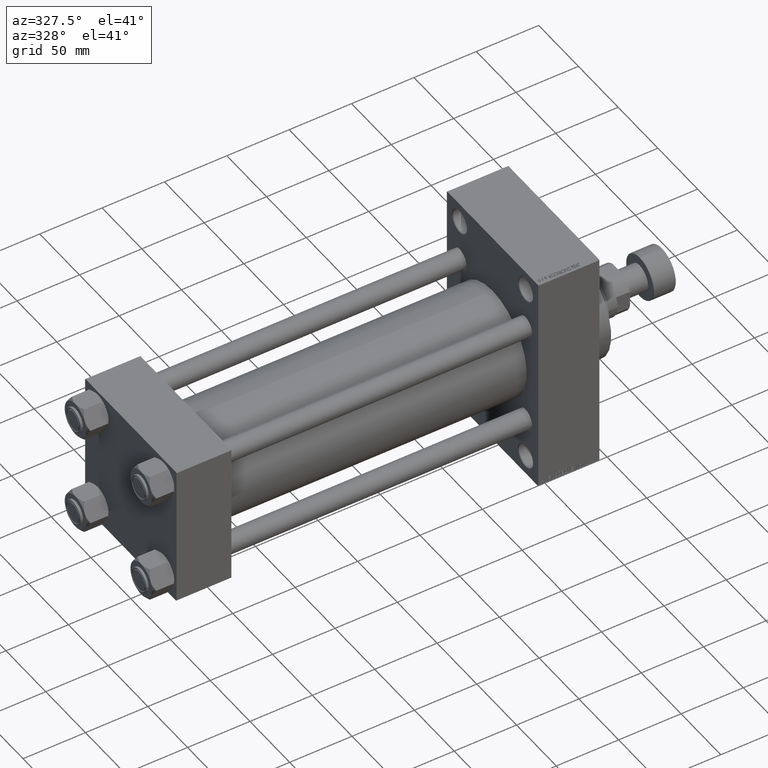
[diagram: clean part render]
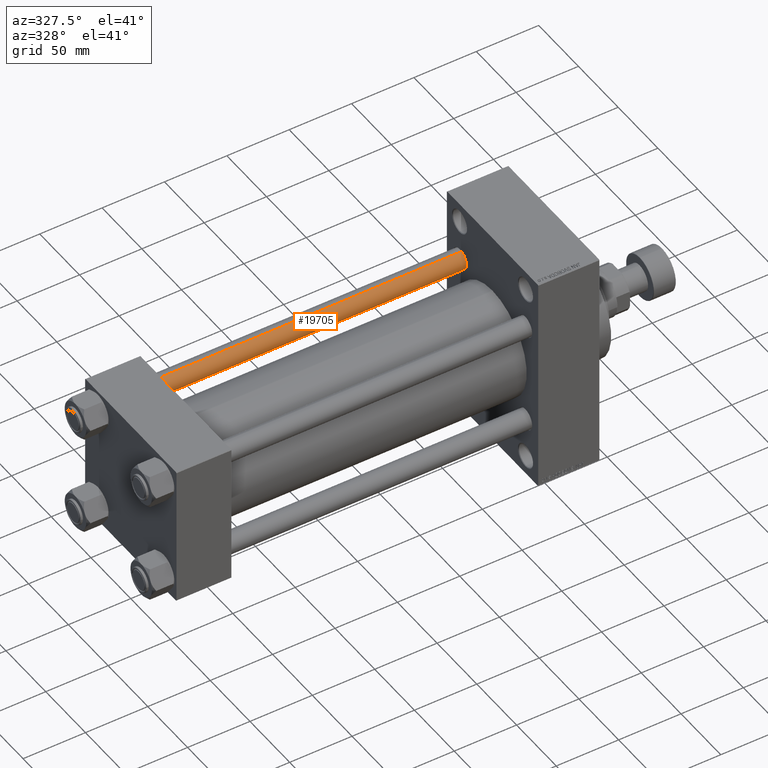
[diagram: same view with one face highlighted and labeled with its STEP entity id]
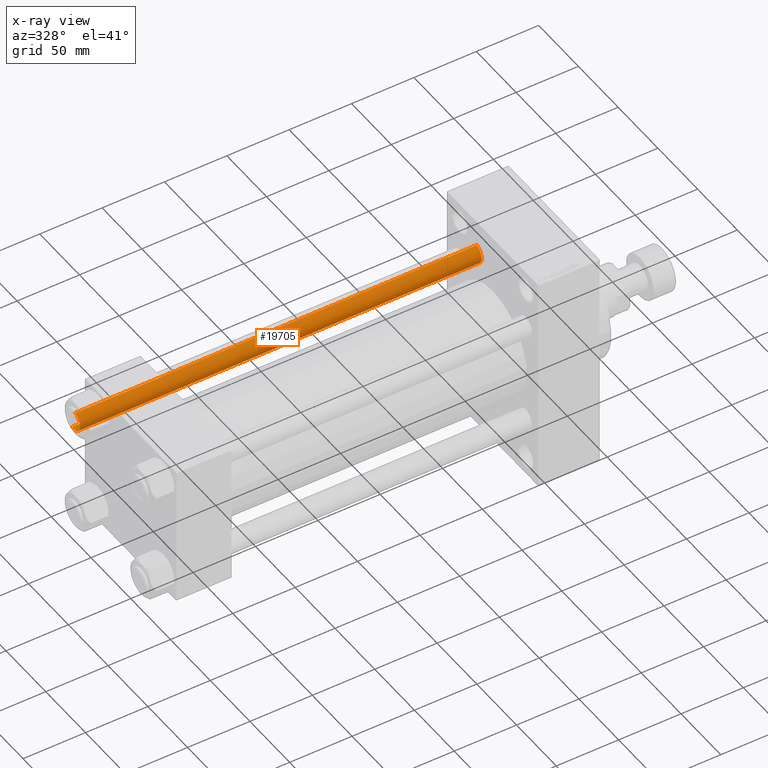
[diagram: x-ray of the same camera — body ghosted, the highlighted face saturated]
A machine part, auxiliary view. The second image highlights one B-rep face of the part: STEP entity #19705.
The next image is the same camera in x-ray: the body ghosted, the highlighted face saturated — about 0% of this face is hidden behind the body in this view.
In plain terms, the highlighted cylindrical surface (edge-blend (fillet) strip) has radius 8 mm, axis along (-1, -0, 0).
Its self-contained STEP definition (entity closure, byte-faithful):
#951 = CARTESIAN_POINT ( 'NONE',  ( -8.000000000000000000, 0.000000000000000000, 0.5000000000000004441 ) ) ;
#1898 = AXIS2_PLACEMENT_3D ( 'NONE', #40627, #22056, #33799 ) ;
#4510 = VECTOR ( 'NONE', #17294, 1000.000000000000000 ) ;
#4548 = LINE ( 'NONE', #16794, #14487 ) ;
#7925 = ORIENTED_EDGE ( 'NONE', *, *, #28003, .F. ) ;
#9476 = AXIS2_PLACEMENT_3D ( 'NONE', #21277, #21030, #32297 ) ;
#9477 = LINE ( 'NONE', #43926, #4510 ) ;
#12594 = CIRCLE ( 'NONE', #9476, 8.000000000000000000 ) ;
#13609 = VERTEX_POINT ( 'NONE', #25053 ) ;
#14167 = EDGE_CURVE ( 'NONE', #44642, #13609, #12594, .T. ) ;
#14487 = VECTOR ( 'NONE', #19474, 1000.000000000000000 ) ;
#15832 = ORIENTED_EDGE ( 'NONE', *, *, #25265, .T. ) ;
#16794 = CARTESIAN_POINT ( 'NONE',  ( 8.000000000000000000, 9.797174393178825657E-16, 323.0000000000000000 ) ) ;
#17294 = DIRECTION ( 'NONE',  ( -0.000000000000000000, -0.000000000000000000, -1.000000000000000000 ) ) ;
#19474 = DIRECTION ( 'NONE',  ( -0.000000000000000000, -0.000000000000000000, -1.000000000000000000 ) ) ;
#19566 = CARTESIAN_POINT ( 'NONE',  ( -8.000000000000000000, 0.000000000000000000, 322.5000000000000000 ) ) ;
#19705 = ADVANCED_FACE ( 'NONE', ( #31777 ), #29045, .T. ) ;
#20649 = CIRCLE ( 'NONE', #1898, 8.000000000000000000 ) ;
#20980 = DIRECTION ( 'NONE',  ( -1.000000000000000000, 0.000000000000000000, 0.000000000000000000 ) ) ;
#21030 = DIRECTION ( 'NONE',  ( -0.000000000000000000, -0.000000000000000000, 1.000000000000000000 ) ) ;
#21277 = CARTESIAN_POINT ( 'NONE',  ( 0.000000000000000000, 0.000000000000000000, 0.5000000000000004441 ) ) ;
#21295 = VERTEX_POINT ( 'NONE', #19566 ) ;
#22056 = DIRECTION ( 'NONE',  ( 0.000000000000000000, 0.000000000000000000, -1.000000000000000000 ) ) ;
#22060 = VERTEX_POINT ( 'NONE', #38771 ) ;
#23409 = EDGE_LOOP ( 'NONE', ( #7925, #15832, #42181, #25753 ) ) ;
#24177 = CARTESIAN_POINT ( 'NONE',  ( 0.000000000000000000, 0.000000000000000000, 323.0000000000000000 ) ) ;
#25053 = CARTESIAN_POINT ( 'NONE',  ( 8.000000000000000000, 9.797174393178825657E-16, 0.5000000000000004441 ) ) ;
#25265 = EDGE_CURVE ( 'NONE', #22060, #21295, #20649, .T. ) ;
#25753 = ORIENTED_EDGE ( 'NONE', *, *, #14167, .T. ) ;
#26817 = AXIS2_PLACEMENT_3D ( 'NONE', #24177, #28571, #20980 ) ;
#28003 = EDGE_CURVE ( 'NONE', #22060, #13609, #4548, .T. ) ;
#28571 = DIRECTION ( 'NONE',  ( -0.000000000000000000, -0.000000000000000000, -1.000000000000000000 ) ) ;
#29045 = CYLINDRICAL_SURFACE ( 'NONE', #26817, 8.000000000000000000 ) ;
#31777 = FACE_OUTER_BOUND ( 'NONE', #23409, .T. ) ;
#32297 = DIRECTION ( 'NONE',  ( 1.000000000000000000, 0.000000000000000000, 0.000000000000000000 ) ) ;
#33799 = DIRECTION ( 'NONE',  ( 1.000000000000000000, 0.000000000000000000, 0.000000000000000000 ) ) ;
#34519 = EDGE_CURVE ( 'NONE', #21295, #44642, #9477, .T. ) ;
#38771 = CARTESIAN_POINT ( 'NONE',  ( 8.000000000000000000, 9.797174393178825657E-16, 322.5000000000000000 ) ) ;
#40627 = CARTESIAN_POINT ( 'NONE',  ( 0.000000000000000000, 0.000000000000000000, 322.5000000000000000 ) ) ;
#42181 = ORIENTED_EDGE ( 'NONE', *, *, #34519, .T. ) ;
#43926 = CARTESIAN_POINT ( 'NONE',  ( -8.000000000000000000, 0.000000000000000000, 323.0000000000000000 ) ) ;
#44642 = VERTEX_POINT ( 'NONE', #951 ) ;